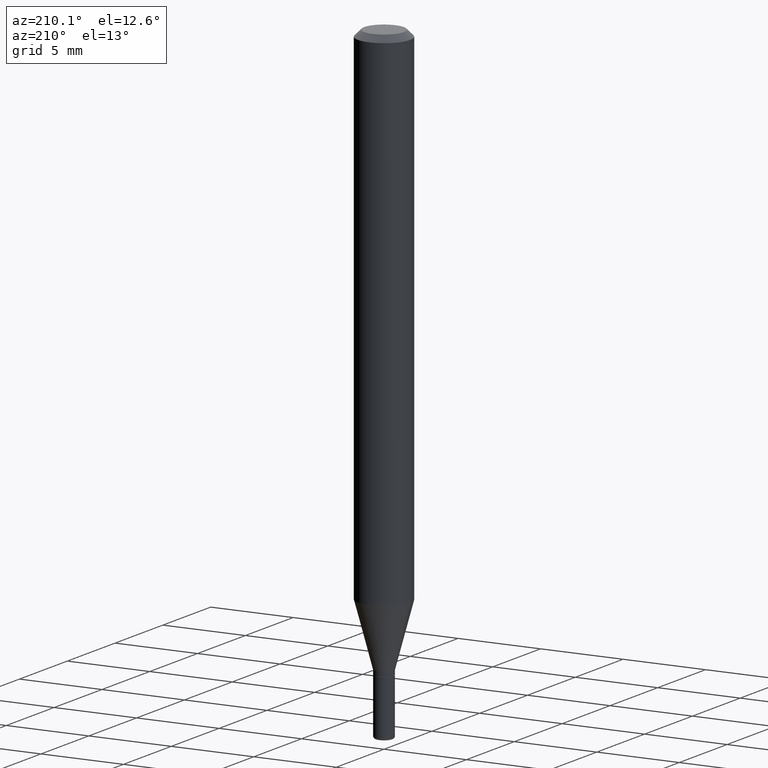
[diagram: clean part render]
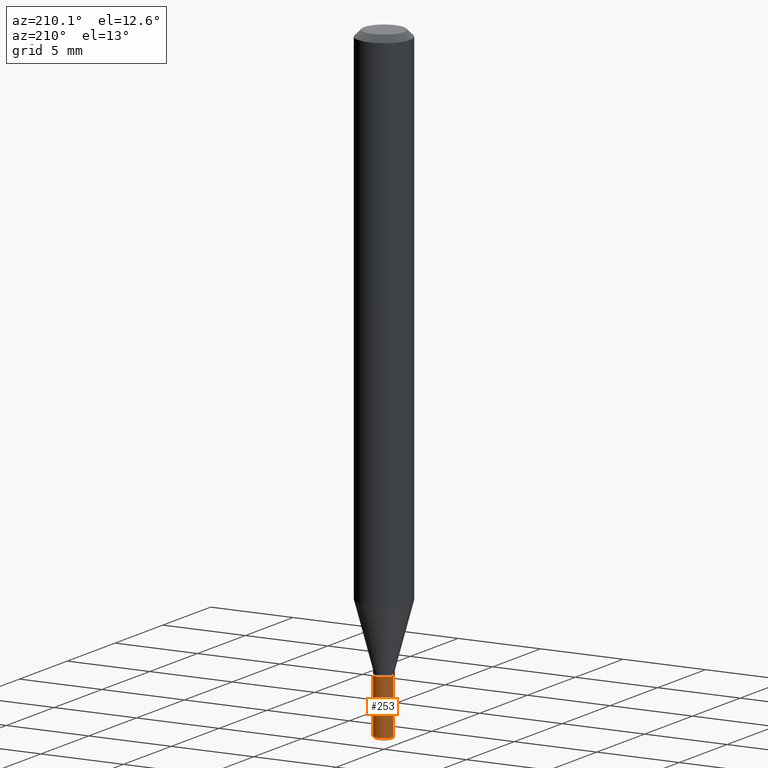
[diagram: same view with one face highlighted and labeled with its STEP entity id]
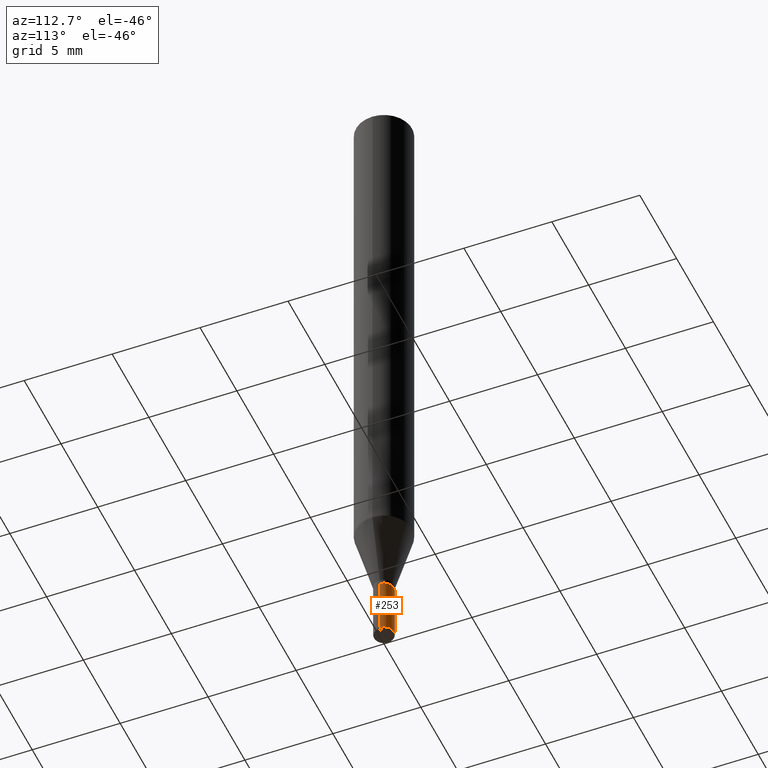
[diagram: same view with one face highlighted and labeled with its STEP entity id]
A machine part, auxiliary view. The second image highlights one B-rep face of the part: STEP entity #253.
A second angle (auxiliary view) of the same face is appended — the face is thin or edge-on in the first view.
In plain terms, the highlighted cylindrical surface (edge-blend (fillet) strip) has radius 0.5715 mm, axis along (-0, 0, 1).
Its self-contained STEP definition (entity closure, byte-faithful):
#23 = EDGE_CURVE ( 'NONE', #33, #110, #342, .T. ) ;
#33 = VERTEX_POINT ( 'NONE', #296 ) ;
#48 = CARTESIAN_POINT ( 'NONE',  ( 0.000000000000000000, 0.000000000000000000, 0.000000000000000000 ) ) ;
#52 = ORIENTED_EDGE ( 'NONE', *, *, #23, .T. ) ;
#57 = CIRCLE ( 'NONE', #274, 0.02250000000000017958 ) ;
#82 = CARTESIAN_POINT ( 'NONE',  ( 0.02250000000000017958, -5.376881261818446351E-15, -1.495000000000000329 ) ) ;
#91 = FACE_OUTER_BOUND ( 'NONE', #229, .T. ) ;
#94 = CARTESIAN_POINT ( 'NONE',  ( -0.02250000000000008937, 1.598721155460231769E-16, -1.106760395307358334E-30 ) ) ;
#110 = VERTEX_POINT ( 'NONE', #195 ) ;
#119 = DIRECTION ( 'NONE',  ( 1.000000000000000000, -6.982962677686255667E-15, 0.000000000000000000 ) ) ;
#130 = AXIS2_PLACEMENT_3D ( 'NONE', #48, #444, #360 ) ;
#147 = DIRECTION ( 'NONE',  ( -2.445468806185136877E-29, 3.491481338843145188E-15, 1.000000000000000000 ) ) ;
#152 = EDGE_CURVE ( 'NONE', #257, #33, #57, .T. ) ;
#163 = CARTESIAN_POINT ( 'NONE',  ( 0.02249999999999999917, -4.922988687768834913E-15, -1.364999999999999991 ) ) ;
#166 = DIRECTION ( 'NONE',  ( 1.000000000000000000, -6.982962677686269077E-15, 0.000000000000000000 ) ) ;
#181 = LINE ( 'NONE', #269, #258 ) ;
#195 = CARTESIAN_POINT ( 'NONE',  ( -0.02249999999999999917, -4.832946198999675921E-15, -1.364999999999999991 ) ) ;
#211 = AXIS2_PLACEMENT_3D ( 'NONE', #404, #482, #166 ) ;
#229 = EDGE_LOOP ( 'NONE', ( #470, #52, #318, #359 ) ) ;
#253 = ADVANCED_FACE ( 'NONE', ( #91 ), #322, .T. ) ;
#257 = VERTEX_POINT ( 'NONE', #82 ) ;
#258 = VECTOR ( 'NONE', #450, 39.37007874015748143 ) ;
#269 = CARTESIAN_POINT ( 'NONE',  ( 0.02250000000000008937, -1.571166602479416074E-16, 1.097139774554090038E-30 ) ) ;
#274 = AXIS2_PLACEMENT_3D ( 'NONE', #387, #431, #119 ) ;
#296 = CARTESIAN_POINT ( 'NONE',  ( -0.02250000000000017958, -4.832946198999673555E-15, -1.495000000000000329 ) ) ;
#318 = ORIENTED_EDGE ( 'NONE', *, *, #471, .F. ) ;
#322 = CYLINDRICAL_SURFACE ( 'NONE', #130, 0.02250000000000008937 ) ;
#342 = LINE ( 'NONE', #94, #368 ) ;
#359 = ORIENTED_EDGE ( 'NONE', *, *, #517, .F. ) ;
#360 = DIRECTION ( 'NONE',  ( 1.000000000000000000, -6.982962677686265922E-15, 4.876176775795936353E-29 ) ) ;
#368 = VECTOR ( 'NONE', #147, 39.37007874015748143 ) ;
#387 = CARTESIAN_POINT ( 'NONE',  ( 3.655975865246779683E-29, -5.219764601570503930E-15, -1.495000000000000329 ) ) ;
#394 = CIRCLE ( 'NONE', #211, 0.02249999999999999917 ) ;
#404 = CARTESIAN_POINT ( 'NONE',  ( 3.338064920442711836E-29, -4.765872027520893280E-15, -1.364999999999999991 ) ) ;
#431 = DIRECTION ( 'NONE',  ( -2.445468806185136597E-29, 3.491481338843145583E-15, 1.000000000000000000 ) ) ;
#444 = DIRECTION ( 'NONE',  ( -2.445468806185136597E-29, 3.491481338843145583E-15, 1.000000000000000000 ) ) ;
#445 = VERTEX_POINT ( 'NONE', #163 ) ;
#450 = DIRECTION ( 'NONE',  ( -2.445468806185136877E-29, 3.491481338843145188E-15, 1.000000000000000000 ) ) ;
#470 = ORIENTED_EDGE ( 'NONE', *, *, #152, .T. ) ;
#471 = EDGE_CURVE ( 'NONE', #445, #110, #394, .T. ) ;
#482 = DIRECTION ( 'NONE',  ( -2.445468806185136597E-29, 3.491481338843145583E-15, 1.000000000000000000 ) ) ;
#517 = EDGE_CURVE ( 'NONE', #257, #445, #181, .T. ) ;